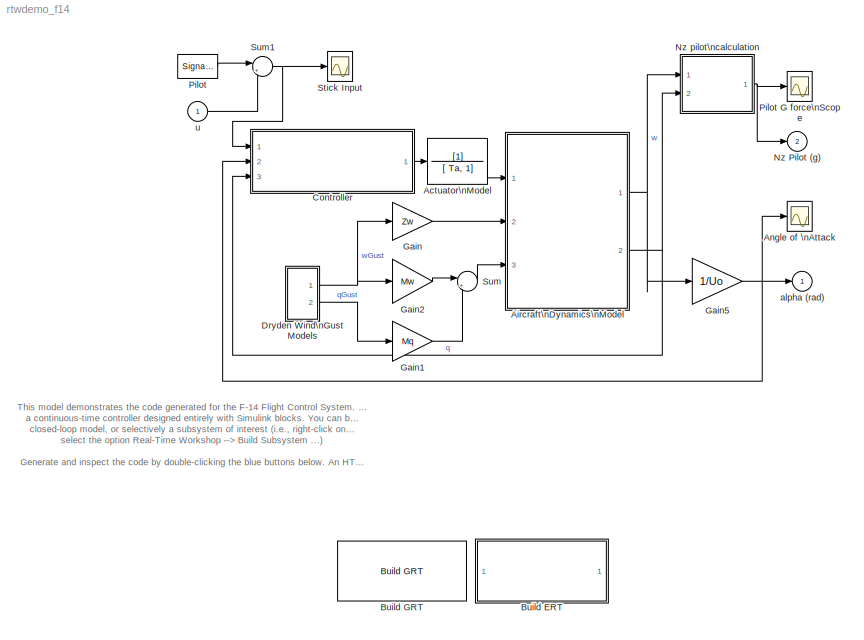
MODEL rtwdemo_f14
KIND model
CONFIG PreLoadFcn = f14dat
BLOCK [TransferFcn] Actuator\nModel
  Denominator = [ Ta, 1]
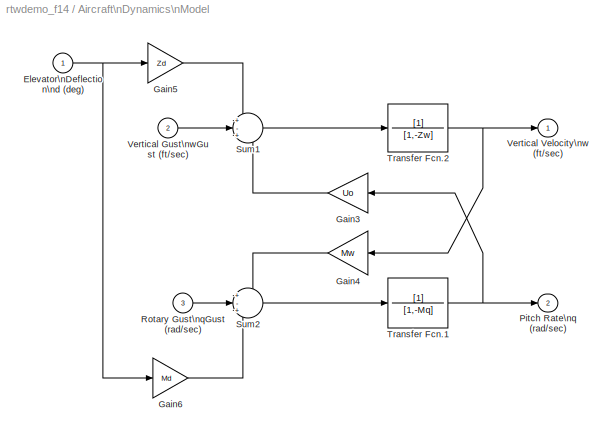
BLOCK [SubSystem] Aircraft\nDynamics\nModel
  MinAlgLoopOccurrences = off
  Ports = [3, 2]
  PropExecContextAcrossSSBoundary = on
  RTWSystemCode = Auto
  TreatAsAtomicUnit = off
BLOCK [Inport] Aircraft\nDynamics\nModel/Elevator\nDeflection\nd (deg)
  IconDisplay = Port number
  LatchInput = off
  Port = 1
BLOCK [Gain] Aircraft\nDynamics\nModel/Gain3
  Gain = Uo
BLOCK [Gain] Aircraft\nDynamics\nModel/Gain4
  Gain = Mw
BLOCK [Gain] Aircraft\nDynamics\nModel/Gain5
  Gain = Zd
BLOCK [Gain] Aircraft\nDynamics\nModel/Gain6
  Gain = Md
BLOCK [Outport] Aircraft\nDynamics\nModel/Pitch Rate\nq (rad//sec)
  BusOutputAsStruct = off
  IconDisplay = Port number
  InitialOutput = 0
  Port = 2
BLOCK [Inport] Aircraft\nDynamics\nModel/Rotary Gust\nqGust (rad//sec)
  IconDisplay = Port number
  LatchInput = off
  Port = 3
BLOCK [Sum] Aircraft\nDynamics\nModel/Sum1
  IconShape = round
  Inputs = +-+
  Ports = [3, 1]
BLOCK [Sum] Aircraft\nDynamics\nModel/Sum2
  IconShape = round
  Inputs = +-+
  Ports = [3, 1]
BLOCK [TransferFcn] Aircraft\nDynamics\nModel/Transfer Fcn.1
  Denominator = [1,-Mq]
BLOCK [TransferFcn] Aircraft\nDynamics\nModel/Transfer Fcn.2
  Denominator = [1,-Zw]
BLOCK [Inport] Aircraft\nDynamics\nModel/Vertical Gust\nwGust (ft//sec)
  IconDisplay = Port number
  LatchInput = off
  Port = 2
BLOCK [Outport] Aircraft\nDynamics\nModel/Vertical Velocity\nw (ft//sec)
  BusOutputAsStruct = off
  IconDisplay = Port number
  InitialOutput = 0
BLOCK [Scope] Angle of \nAttack
  DataFormat = Array
  NumInputPorts = 1
  Ports = [1]
  TickLabels = on
  TimeRange = 60
  YMax = 1.25
  YMin = -1.25
BLOCK [SubSystem] Build ERT
  AncestorBlock = rtwdemowidgets/Build ERT
  MaskDescription = Enter the attributes of the configuration set that you want preserved.  Otherwise, the default configuration script will override your current settings.
  MaskDisplay = disp(['Generate Code Using\\n',...\n	  'Real-Time Workshop\\n',...\n	  'Embedded Coder\\n'...\n	  '(double-click)'])
  MaskEnableString = on
  MaskIconFrame = on
  MaskIconOpaque = on
  MaskIconRotate = none
  MaskIconUnits = autoscale
  MaskPromptString = List of attributes to preserve (cell of strings):
  MaskStyleString = edit
  MaskToolTipString = on
  MaskTunableValueString = off
  MaskValueString = {}
  MaskVariables = attrib_overrides=&1;
  MaskVisibilityString = on
  MinAlgLoopOccurrences = off
  OpenFcn = model=bdroot;                                    \noverrides=get_param(gcb,'attrib_overrides');     \ntry                                              \n  rtwconfiguredemo(model,'noop',false,overrides);\n  cs = getActiveConfigSet(model);                \n  set_param(cs,'SupportNonFinite','on');         \n  rtwbuilddemomodel(model);                      \ncatch                                      ...<+110ch>
  Ports = []
  PropExecContextAcrossSSBoundary = on
  RTWSystemCode = Auto
  TreatAsAtomicUnit = off
BLOCK [Reference] Build GRT  REF=rtwdemowidgets/Build GRT
  Ports = []
  ShowPortLabels = on
  SourceBlock = rtwdemowidgets/Build GRT
  attrib_overrides = {}
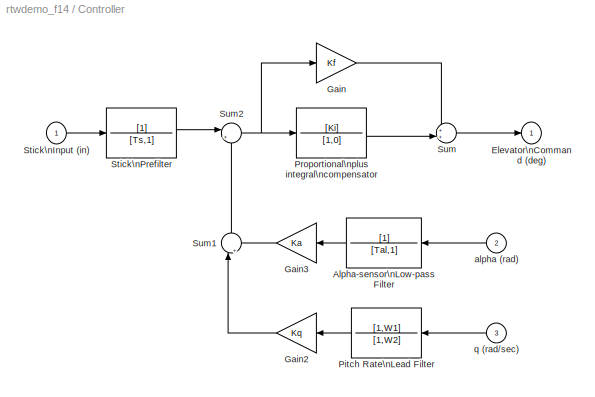
BLOCK [SubSystem] Controller
  MinAlgLoopOccurrences = off
  Ports = [3, 1]
  PropExecContextAcrossSSBoundary = on
  RTWSystemCode = Auto
  TreatAsAtomicUnit = off
BLOCK [TransferFcn] Controller/Alpha-sensor\nLow-pass Filter
  Denominator = [Tal,1]
BLOCK [Outport] Controller/Elevator\nCommand (deg)
  BusOutputAsStruct = off
  IconDisplay = Port number
  InitialOutput = 0
BLOCK [Gain] Controller/Gain
  Gain = Kf
BLOCK [Gain] Controller/Gain2
  Gain = Kq
BLOCK [Gain] Controller/Gain3
  Gain = Ka
BLOCK [TransferFcn] Controller/Pitch Rate\nLead Filter
  Denominator = [1,W2]
  Numerator = [1,W1]
BLOCK [TransferFcn] Controller/Proportional\nplus integral\ncompensator
  Denominator = [1,0]
  Numerator = [Ki]
BLOCK [Inport] Controller/Stick\nInput (in)
  IconDisplay = Port number
  LatchInput = off
  Port = 1
BLOCK [TransferFcn] Controller/Stick\nPrefilter
  Denominator = [Ts,1]
BLOCK [Sum] Controller/Sum
  IconShape = round
  Inputs = ++|
  Ports = [2, 1]
BLOCK [Sum] Controller/Sum1
  IconShape = round
  Inputs = |++
  Ports = [2, 1]
BLOCK [Sum] Controller/Sum2
  IconShape = round
  Inputs = |+-
  Ports = [2, 1]
BLOCK [Inport] Controller/alpha (rad)
  IconDisplay = Port number
  LatchInput = off
  Port = 2
BLOCK [Inport] Controller/q (rad//sec)
  IconDisplay = Port number
  LatchInput = off
  Port = 3
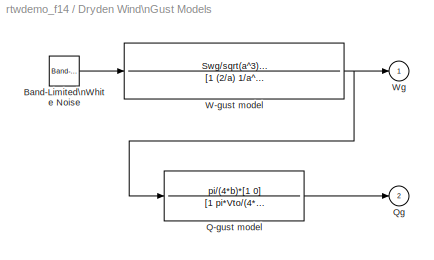
BLOCK [SubSystem] Dryden Wind\nGust Models
  MinAlgLoopOccurrences = off
  Ports = [0, 2]
  PropExecContextAcrossSSBoundary = on
  RTWSystemCode = Auto
  TreatAsAtomicUnit = off
BLOCK [Reference] Dryden Wind\nGust Models/Band-Limited\nWhite Noise  REF=simulink/Sources/Band-Limited\nWhite Noise
  Cov = 1
  Ports = [0, 1]
  ShowPortLabels = on
  SourceBlock = simulink/Sources/Band-Limited\nWhite Noise
  SourceType = Band-Limited White Noise.
  Ts = 0.1
  VectorParams1D = on
  seed = [23341]
BLOCK [TransferFcn] Dryden Wind\nGust Models/Q-gust model
  Denominator = [1 pi*Vto/(4*b)]
  Numerator = pi/(4*b)*[1 0]
BLOCK [Outport] Dryden Wind\nGust Models/Qg
  BusOutputAsStruct = off
  IconDisplay = Port number
  InitialOutput = 0
  Port = 2
BLOCK [TransferFcn] Dryden Wind\nGust Models/W-gust model
  Denominator = [1 (2/a) 1/a^2]
  Numerator = Swg/sqrt(a^3)*[sqrt(3)*a,1]
BLOCK [Outport] Dryden Wind\nGust Models/Wg
  BusOutputAsStruct = off
  IconDisplay = Port number
  InitialOutput = 0
BLOCK [Gain] Gain
  Gain = Zw
BLOCK [Gain] Gain1
  Gain = Mq
BLOCK [Gain] Gain2
  Gain = Mw
BLOCK [Gain] Gain5
  Gain = 1/Uo
BLOCK [Outport] Nz Pilot (g)
  BusOutputAsStruct = off
  IconDisplay = Port number
  InitialOutput = 0
  Port = 2
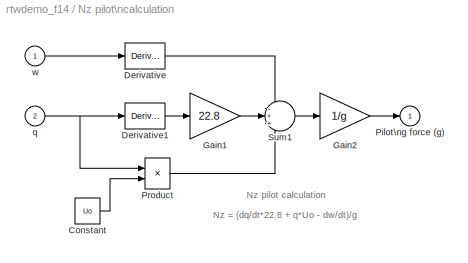
BLOCK [SubSystem] Nz pilot\ncalculation
  MinAlgLoopOccurrences = off
  Ports = [2, 1]
  PropExecContextAcrossSSBoundary = on
  RTWSystemCode = Auto
  TreatAsAtomicUnit = off
BLOCK [Constant] Nz pilot\ncalculation/Constant
  Value = Uo
BLOCK [Derivative] Nz pilot\ncalculation/Derivative
BLOCK [Derivative] Nz pilot\ncalculation/Derivative1
BLOCK [Gain] Nz pilot\ncalculation/Gain1
  Gain = 22.8
BLOCK [Gain] Nz pilot\ncalculation/Gain2
  Gain = 1/g
BLOCK [Outport] Nz pilot\ncalculation/Pilot\ng force (g)
  BusOutputAsStruct = off
  IconDisplay = Port number
  InitialOutput = 0
BLOCK [Product] Nz pilot\ncalculation/Product
  Ports = [2, 1]
BLOCK [Sum] Nz pilot\ncalculation/Sum1
  IconShape = round
  Inputs = -++
  Ports = [3, 1]
BLOCK [Inport] Nz pilot\ncalculation/q
  IconDisplay = Port number
  LatchInput = off
  Port = 2
BLOCK [Inport] Nz pilot\ncalculation/w
  IconDisplay = Port number
  LatchInput = off
  Port = 1
BLOCK [SignalGenerator] Pilot
  Frequency = 0.500000
  Ports = [0, 1]
  Units = rad/sec
  WaveForm = square
BLOCK [Scope] Pilot G force\nScope
  DataFormat = Array
  NumInputPorts = 1
  Ports = [1]
  TickLabels = on
  TimeRange = 60
  YMax = 15
  YMin = -15
BLOCK [Scope] Stick Input
  DataFormat = Array
  NumInputPorts = 1
  Ports = [1]
  TickLabels = on
  TimeRange = 60
  YMax = 1.5
  YMin = -1.5
BLOCK [Sum] Sum
  IconShape = round
  Inputs = |++
  Ports = [2, 1]
BLOCK [Sum] Sum1
  IconShape = round
  Inputs = |++
  Ports = [2, 1]
BLOCK [Outport] alpha (rad)
  BusOutputAsStruct = off
  IconDisplay = Port number
  InitialOutput = 0
BLOCK [Inport] u
  IconDisplay = Port number
  LatchInput = off
  Port = 1
ANNOTATION (root): This model demonstrates the code generated for the F-14 Flight Control System. The model contains\na continuous-time controller designed entirely with Simulink blocks. You can build the entire\nclosed-loop model, or selectively a subsystem of interest (i.e., right-click on a subsystem block and\nselect the option Real-Time Workshop --> Build Subsystem ...)\n\nGenerate and inspect the code by doubl...<+97ch>
ANNOTATION Nz pilot\ncalculation: Nz = (dq/dt*22.8 + q*Uo - dw/dt)/g
ANNOTATION Nz pilot\ncalculation: Nz pilot calculation
LINE Actuator\nModel:1 -> Aircraft\nDynamics\nModel:1
NET Aircraft\nDynamics\nModel/Elevator\nDeflection\nd (deg):1 -> Aircraft\nDynamics\nModel/Gain5:1, Aircraft\nDynamics\nModel/Gain6:1
LINE Aircraft\nDynamics\nModel/Gain3:1 -> Aircraft\nDynamics\nModel/Sum1:3
LINE Aircraft\nDynamics\nModel/Gain4:1 -> Aircraft\nDynamics\nModel/Sum2:1
LINE Aircraft\nDynamics\nModel/Gain5:1 -> Aircraft\nDynamics\nModel/Sum1:1
LINE Aircraft\nDynamics\nModel/Gain6:1 -> Aircraft\nDynamics\nModel/Sum2:3
LINE Aircraft\nDynamics\nModel/Rotary Gust\nqGust (rad//sec):1 -> Aircraft\nDynamics\nModel/Sum2:2
LINE Aircraft\nDynamics\nModel/Sum1:1 -> Aircraft\nDynamics\nModel/Transfer Fcn.2:1
LINE Aircraft\nDynamics\nModel/Sum2:1 -> Aircraft\nDynamics\nModel/Transfer Fcn.1:1
NET Aircraft\nDynamics\nModel/Transfer Fcn.1:1 -> Aircraft\nDynamics\nModel/Gain3:1, Aircraft\nDynamics\nModel/Pitch Rate\nq (rad//sec):1
NET Aircraft\nDynamics\nModel/Transfer Fcn.2:1 -> Aircraft\nDynamics\nModel/Gain4:1, Aircraft\nDynamics\nModel/Vertical Velocity\nw (ft//sec):1
LINE Aircraft\nDynamics\nModel/Vertical Gust\nwGust (ft//sec):1 -> Aircraft\nDynamics\nModel/Sum1:2
NET Aircraft\nDynamics\nModel:1 -> Gain5:1, Nz pilot\ncalculation:1
NET Aircraft\nDynamics\nModel:2 -> Controller:3, Nz pilot\ncalculation:2
LINE Controller/Alpha-sensor\nLow-pass Filter:1 -> Controller/Gain3:1
LINE Controller/Gain2:1 -> Controller/Sum1:1
LINE Controller/Gain3:1 -> Controller/Sum1:2
LINE Controller/Gain:1 -> Controller/Sum:1
LINE Controller/Pitch Rate\nLead Filter:1 -> Controller/Gain2:1
LINE Controller/Proportional\nplus integral\ncompensator:1 -> Controller/Sum:2
LINE Controller/Stick\nInput (in):1 -> Controller/Stick\nPrefilter:1
LINE Controller/Stick\nPrefilter:1 -> Controller/Sum2:1
LINE Controller/Sum1:1 -> Controller/Sum2:2
NET Controller/Sum2:1 -> Controller/Gain:1, Controller/Proportional\nplus integral\ncompensator:1
LINE Controller/Sum:1 -> Controller/Elevator\nCommand (deg):1
LINE Controller/alpha (rad):1 -> Controller/Alpha-sensor\nLow-pass Filter:1
LINE Controller/q (rad//sec):1 -> Controller/Pitch Rate\nLead Filter:1
LINE Controller:1 -> Actuator\nModel:1
LINE Dryden Wind\nGust Models/Band-Limited\nWhite Noise:1 -> Dryden Wind\nGust Models/W-gust model:1
LINE Dryden Wind\nGust Models/Q-gust model:1 -> Dryden Wind\nGust Models/Qg:1
NET Dryden Wind\nGust Models/W-gust model:1 -> Dryden Wind\nGust Models/Q-gust model:1, Dryden Wind\nGust Models/Wg:1
NET Dryden Wind\nGust Models:1 -> Gain2:1, Gain:1
LINE Dryden Wind\nGust Models:2 -> Gain1:1
LINE Gain1:1 -> Sum:2
LINE Gain2:1 -> Sum:1
NET Gain5:1 -> Angle of \nAttack:1, Controller:2, alpha (rad):1
LINE Gain:1 -> Aircraft\nDynamics\nModel:2
LINE Nz pilot\ncalculation/Constant:1 -> Nz pilot\ncalculation/Product:2
LINE Nz pilot\ncalculation/Derivative1:1 -> Nz pilot\ncalculation/Gain1:1
LINE Nz pilot\ncalculation/Derivative:1 -> Nz pilot\ncalculation/Sum1:1
LINE Nz pilot\ncalculation/Gain1:1 -> Nz pilot\ncalculation/Sum1:2
LINE Nz pilot\ncalculation/Gain2:1 -> Nz pilot\ncalculation/Pilot\ng force (g):1
LINE Nz pilot\ncalculation/Product:1 -> Nz pilot\ncalculation/Sum1:3
LINE Nz pilot\ncalculation/Sum1:1 -> Nz pilot\ncalculation/Gain2:1
NET Nz pilot\ncalculation/q:1 -> Nz pilot\ncalculation/Derivative1:1, Nz pilot\ncalculation/Product:1
LINE Nz pilot\ncalculation/w:1 -> Nz pilot\ncalculation/Derivative:1
NET Nz pilot\ncalculation:1 -> Nz Pilot (g):1, Pilot G force\nScope:1
LINE Pilot:1 -> Sum1:1
NET Sum1:1 -> Controller:1, Stick Input:1
LINE Sum:1 -> Aircraft\nDynamics\nModel:3
LINE u:1 -> Sum1:2
note: NET lines group one-source signal fan-out (src -> all destinations, sorted); 1:1 wires keep LINE
